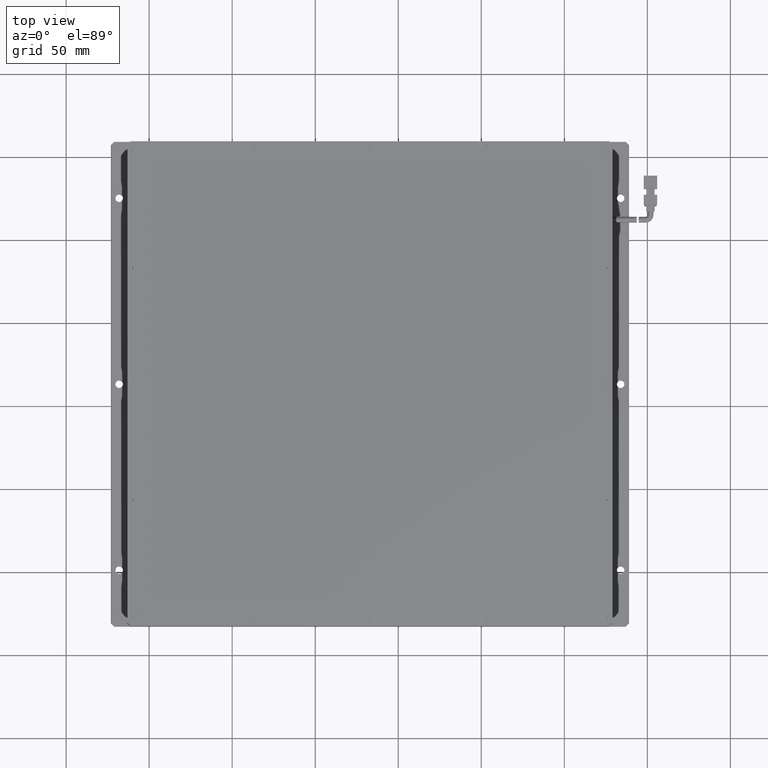
[diagram: clean part render]
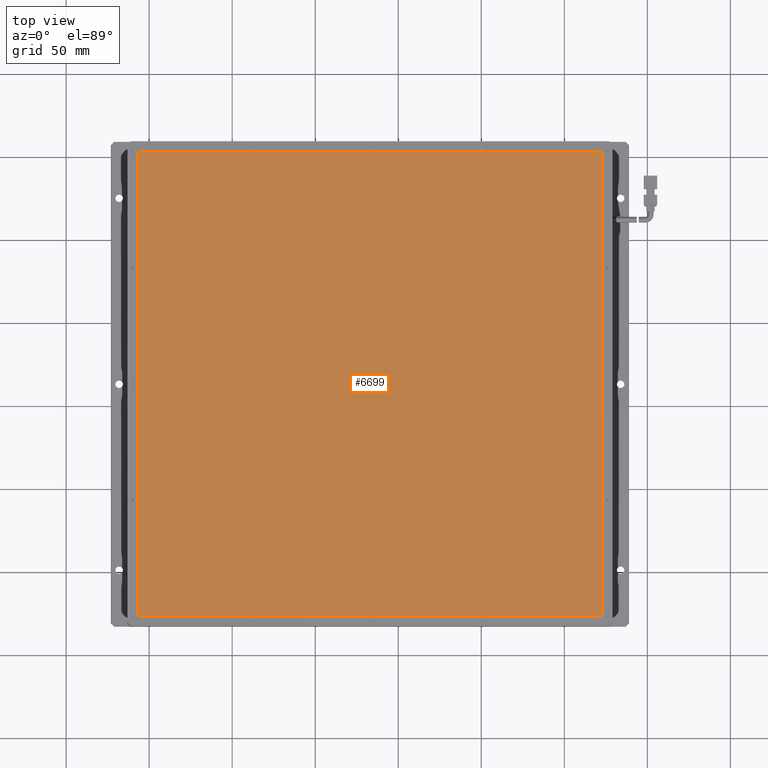
[diagram: same view with one face highlighted and labeled with its STEP entity id]
A machine part, top view. The second image highlights one B-rep face of the part: STEP entity #6699.
In plain terms, the highlighted planar face has unit normal (0, 0, 1).
Its self-contained STEP definition (entity closure, byte-faithful):
#302 = CIRCLE ( 'NONE', #551, 2.000000000000001800 ) ;
#520 = CARTESIAN_POINT ( 'NONE',  ( -107.0806771263419000, 151.2698045692266100, 10.59999999997180500 ) ) ;
#551 = AXIS2_PLACEMENT_3D ( 'NONE', #15718, #15899, #26487 ) ;
#627 = CARTESIAN_POINT ( 'NONE',  ( 170.9193228736581300, 153.2698045692266100, 10.59999999997180500 ) ) ;
#1079 = VECTOR ( 'NONE', #4614, 1000.000000000000000 ) ;
#1121 = CIRCLE ( 'NONE', #22270, 2.000000000000001800 ) ;
#1131 = VECTOR ( 'NONE', #5030, 1000.000000000000000 ) ;
#1439 = VERTEX_POINT ( 'NONE', #520 ) ;
#1794 = LINE ( 'NONE', #20104, #1131 ) ;
#2302 = VERTEX_POINT ( 'NONE', #20578 ) ;
#2669 = CARTESIAN_POINT ( 'NONE',  ( 170.9193228736581300, -124.7301954307734100, 10.59999999997180500 ) ) ;
#4581 = CIRCLE ( 'NONE', #16142, 2.000000000000001800 ) ;
#4614 = DIRECTION ( 'NONE',  ( -0.0000000000000000000, -1.000000000000000000, -0.0000000000000000000 ) ) ;
#4702 = CARTESIAN_POINT ( 'NONE',  ( -107.0806771263419000, -124.7301954307734100, 10.59999999997180500 ) ) ;
#4804 = DIRECTION ( 'NONE',  ( 1.000000000000000000, 0.0000000000000000000, 0.0000000000000000000 ) ) ;
#5030 = DIRECTION ( 'NONE',  ( 1.000000000000000000, -0.0000000000000000000, -0.0000000000000000000 ) ) ;
#5823 = DIRECTION ( 'NONE',  ( 0.0000000000000000000, 0.0000000000000000000, 1.000000000000000000 ) ) ;
#5831 = DIRECTION ( 'NONE',  ( -0.0000000000000000000, 1.000000000000000000, -0.0000000000000000000 ) ) ;
#6090 = CARTESIAN_POINT ( 'NONE',  ( 170.9193228736581300, -124.7301954307734100, 10.59999999997180500 ) ) ;
#6323 = EDGE_CURVE ( 'NONE', #14955, #22805, #302, .T. ) ;
#6699 = ADVANCED_FACE ( 'NONE', ( #7594 ), #25331, .T. ) ;
#6741 = LINE ( 'NONE', #11019, #1079 ) ;
#7340 = ORIENTED_EDGE ( 'NONE', *, *, #21262, .T. ) ;
#7487 = CARTESIAN_POINT ( 'NONE',  ( -105.0806771263419000, -124.7301954307734100, 10.59999999997180500 ) ) ;
#7594 = FACE_OUTER_BOUND ( 'NONE', #14965, .T. ) ;
#7779 = CARTESIAN_POINT ( 'NONE',  ( -105.0806771263419000, -126.7301954307734100, 10.59999999997180500 ) ) ;
#8013 = EDGE_CURVE ( 'NONE', #26984, #18459, #20308, .T. ) ;
#8258 = DIRECTION ( 'NONE',  ( 1.000000000000000000, 0.0000000000000000000, -0.0000000000000000000 ) ) ;
#9659 = DIRECTION ( 'NONE',  ( 1.000000000000000000, 0.0000000000000000000, 0.0000000000000000000 ) ) ;
#10066 = CARTESIAN_POINT ( 'NONE',  ( 172.9193228736581300, 151.2698045692266100, 10.59999999997180500 ) ) ;
#10073 = VERTEX_POINT ( 'NONE', #17937 ) ;
#10270 = CARTESIAN_POINT ( 'NONE',  ( 172.9193228736581300, 151.2698045692266100, 10.59999999997180500 ) ) ;
#11019 = CARTESIAN_POINT ( 'NONE',  ( -107.0806771263419000, -124.7301954307734100, 10.59999999997180500 ) ) ;
#11342 = DIRECTION ( 'NONE',  ( -1.000000000000000000, -0.0000000000000000000, -0.0000000000000000000 ) ) ;
#11423 = VECTOR ( 'NONE', #5831, 1000.000000000000000 ) ;
#11432 = CARTESIAN_POINT ( 'NONE',  ( -105.0806771263419000, 153.2698045692266100, 10.59999999997180500 ) ) ;
#11680 = EDGE_CURVE ( 'NONE', #18459, #10073, #1794, .T. ) ;
#12077 = ORIENTED_EDGE ( 'NONE', *, *, #16495, .T. ) ;
#12140 = EDGE_CURVE ( 'NONE', #1439, #26984, #6741, .T. ) ;
#12529 = LINE ( 'NONE', #11432, #18259 ) ;
#14955 = VERTEX_POINT ( 'NONE', #10066 ) ;
#14965 = EDGE_LOOP ( 'NONE', ( #23002, #19057, #22349, #12077, #7340, #23848, #24269, #18629 ) ) ;
#15718 = CARTESIAN_POINT ( 'NONE',  ( 170.9193228736581300, 151.2698045692266100, 10.59999999997180500 ) ) ;
#15899 = DIRECTION ( 'NONE',  ( 0.0000000000000000000, 0.0000000000000000000, 1.000000000000000000 ) ) ;
#16142 = AXIS2_PLACEMENT_3D ( 'NONE', #18766, #5823, #20895 ) ;
#16495 = EDGE_CURVE ( 'NONE', #22805, #2302, #12529, .T. ) ;
#17160 = LINE ( 'NONE', #10270, #11423 ) ;
#17717 = DIRECTION ( 'NONE',  ( 0.0000000000000000000, 0.0000000000000000000, 1.000000000000000000 ) ) ;
#17937 = CARTESIAN_POINT ( 'NONE',  ( 170.9193228736581300, -126.7301954307734100, 10.59999999997180500 ) ) ;
#18259 = VECTOR ( 'NONE', #11342, 1000.000000000000000 ) ;
#18459 = VERTEX_POINT ( 'NONE', #7779 ) ;
#18629 = ORIENTED_EDGE ( 'NONE', *, *, #11680, .T. ) ;
#18766 = CARTESIAN_POINT ( 'NONE',  ( -105.0806771263419000, 151.2698045692266100, 10.59999999997180500 ) ) ;
#19057 = ORIENTED_EDGE ( 'NONE', *, *, #24097, .T. ) ;
#19159 = VERTEX_POINT ( 'NONE', #25766 ) ;
#19764 = EDGE_CURVE ( 'NONE', #10073, #19159, #1121, .T. ) ;
#20104 = CARTESIAN_POINT ( 'NONE',  ( 170.9193228736581300, -126.7301954307734100, 10.59999999997180500 ) ) ;
#20308 = CIRCLE ( 'NONE', #23505, 2.000000000000001800 ) ;
#20578 = CARTESIAN_POINT ( 'NONE',  ( -105.0806771263419000, 153.2698045692266100, 10.59999999997180500 ) ) ;
#20895 = DIRECTION ( 'NONE',  ( 1.000000000000000000, 0.0000000000000000000, 0.0000000000000000000 ) ) ;
#21157 = DIRECTION ( 'NONE',  ( 0.0000000000000000000, 0.0000000000000000000, 1.000000000000000000 ) ) ;
#21262 = EDGE_CURVE ( 'NONE', #2302, #1439, #4581, .T. ) ;
#21931 = AXIS2_PLACEMENT_3D ( 'NONE', #6090, #21157, #8258 ) ;
#22270 = AXIS2_PLACEMENT_3D ( 'NONE', #2669, #17717, #4804 ) ;
#22349 = ORIENTED_EDGE ( 'NONE', *, *, #6323, .T. ) ;
#22510 = DIRECTION ( 'NONE',  ( 0.0000000000000000000, 0.0000000000000000000, 1.000000000000000000 ) ) ;
#22805 = VERTEX_POINT ( 'NONE', #627 ) ;
#23002 = ORIENTED_EDGE ( 'NONE', *, *, #19764, .T. ) ;
#23505 = AXIS2_PLACEMENT_3D ( 'NONE', #7487, #22510, #9659 ) ;
#23848 = ORIENTED_EDGE ( 'NONE', *, *, #12140, .T. ) ;
#24097 = EDGE_CURVE ( 'NONE', #19159, #14955, #17160, .T. ) ;
#24269 = ORIENTED_EDGE ( 'NONE', *, *, #8013, .T. ) ;
#25331 = PLANE ( 'NONE',  #21931 ) ;
#25766 = CARTESIAN_POINT ( 'NONE',  ( 172.9193228736581300, -124.7301954307734100, 10.59999999997180500 ) ) ;
#26487 = DIRECTION ( 'NONE',  ( 1.000000000000000000, 0.0000000000000000000, 0.0000000000000000000 ) ) ;
#26984 = VERTEX_POINT ( 'NONE', #4702 ) ;